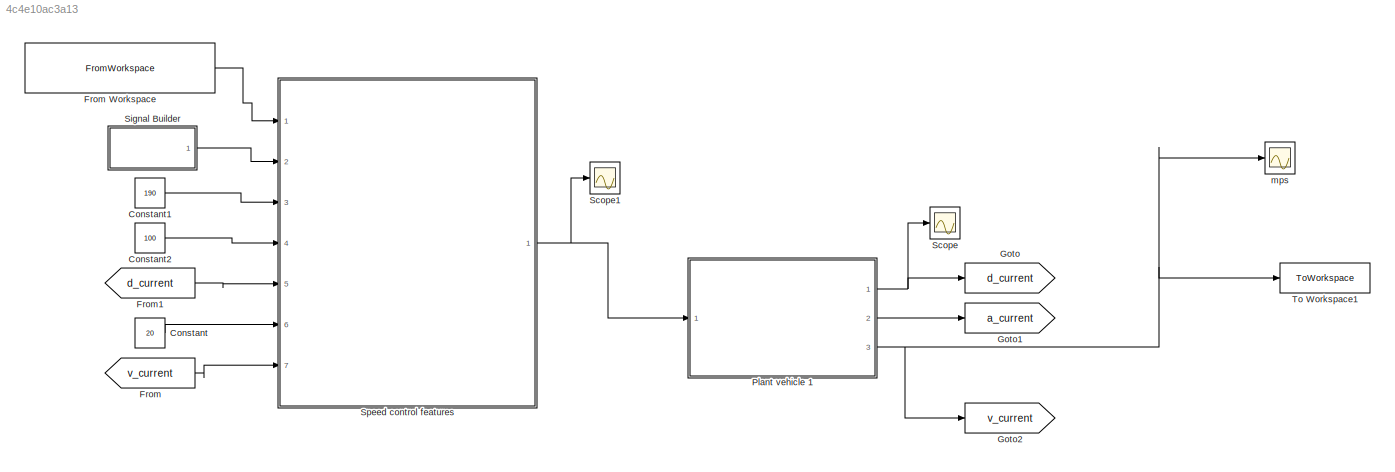
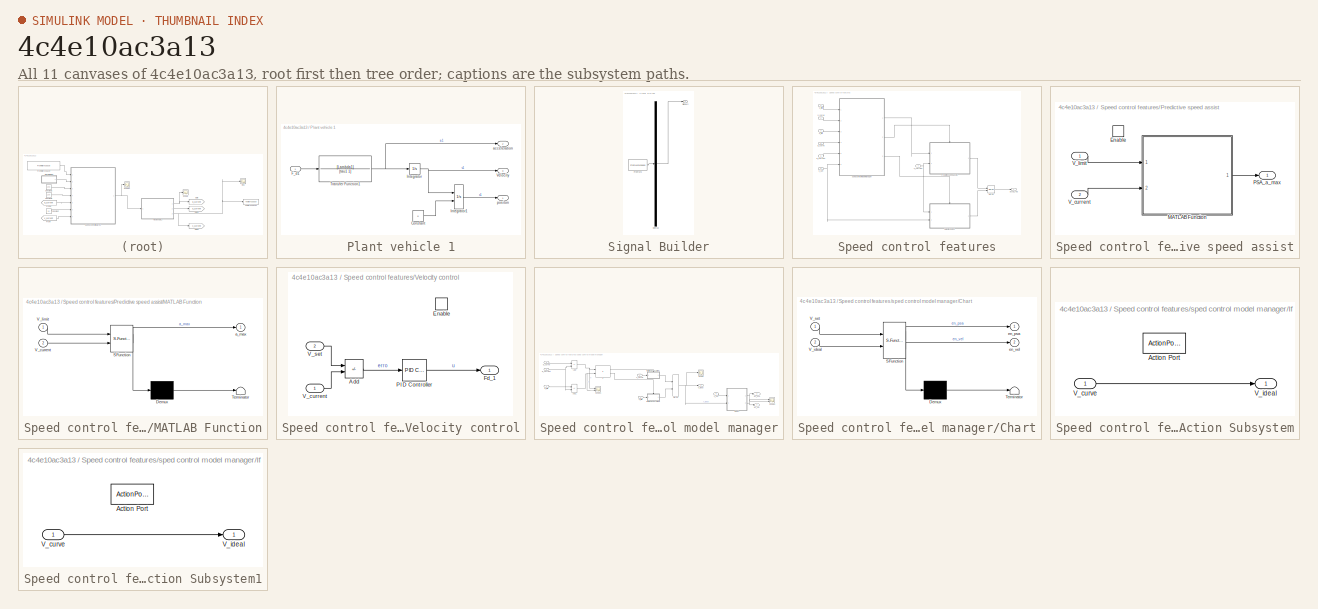
[diagram: thumbnail index - all 11 canvases of the model, root first then tree order]
MODEL slx_4c4e10ac3a13
KIND model
CONFIG AbsTol = auto
CONFIG EnableMultiTasking = off
CONFIG FixedStep = auto
CONFIG MaxStep = auto
CONFIG MinStep = auto
CONFIG RelTol = 1e-3
CONFIG SampleTimeConstraint = Unconstrained
CONFIG SolverName = VariableStepAuto
CONFIG StartTime = 0.0
CONFIG StopTime = 40
BLOCK [Constant] Constant
  Value = 20
BLOCK [Constant] Constant1
  Value = 190
BLOCK [Constant] Constant2
  Value = 100
BLOCK [From] From
  GotoTag = v_current
BLOCK [FromWorkspace] From Workspace
  SampleTime = 0.1
  VariableName = [tRef,V_curve]
BLOCK [From] From1
  GotoTag = d_current
BLOCK [Goto] Goto
  GotoTag = d_current
BLOCK [Goto] Goto1
  GotoTag = a_current
BLOCK [Goto] Goto2
  GotoTag = v_current
BLOCK [SubSystem] Plant vehicle 1
  Ports = [1, 3]
  RequestExecContextInheritance = off
BLOCK [Constant] Plant vehicle 1/Constant
  Value = 0
BLOCK [Inport] Plant vehicle 1/F_d1
BLOCK [Integrator] Plant vehicle 1/Integrator
  InitialCondition = 3
  Ports = [1, 1]
BLOCK [Integrator] Plant vehicle 1/Integrator1
  InitialCondition = x0
  InitialConditionSource = external
  Ports = [2, 1]
BLOCK [TransferFcn] Plant vehicle 1/Transfer Function1
  Denominator = [tau1 1]
  Numerator = [Lambda1]
BLOCK [Outport] Plant vehicle 1/Velocity
  Port = 3
BLOCK [Outport] Plant vehicle 1/acceleration
  Port = 2
BLOCK [Outport] Plant vehicle 1/positon
BLOCK [Scope] Scope
  Floating = off
  NumInputPorts = 1
  Ports = [1]
  ScopeSpecificationString = Simulink.scopes.TimeScopeBlockCfg('CurrentConfiguration', extmgr.ConfigurationSet(extmgr.Configuration('Core','General UI',true),extmgr.Configuration('Core','Source UI',true),extmgr.Configuration('Sources','WiredSimulink',true,'DataLoggingVariableName','ScopeData4'),extmgr.Configuration('Visuals','Time Domain',true,'SerializedDisplays',{struct('MinYLimReal','-92.22336','MaxYLimReal','830.01025','Y...<+1387ch>
BLOCK [Scope] Scope1
  Floating = off
  NumInputPorts = 1
  Ports = [1]
  ScopeSpecificationString = Simulink.scopes.TimeScopeBlockCfg('CurrentConfiguration', extmgr.ConfigurationSet(extmgr.Configuration('Core','General UI',true),extmgr.Configuration('Core','Source UI',true),extmgr.Configuration('Sources','WiredSimulink',true,'DataLoggingVariableName','ScopeData5'),extmgr.Configuration('Visuals','Time Domain',true,'SerializedDisplays',{struct('MinYLimReal','-190.05692','MaxYLimReal','2281.70915',...<+1418ch>
BLOCK [SubSystem] Signal Builder
  ClipboardFcn = sigbuilder_block('clipboard');
  CloseFcn = sigbuilder_block('close');
  ContinueFcn = sigbuilder_block('continue');
  CopyFcn = sigbuilder_block('copy');
  DeleteFcn = sigbuilder_block('delete');
  LoadFcn = sigbuilder_block('load');
  MaskHideContents = on
  ModelCloseFcn = sigbuilder_block('modelClose');
  NameChangeFcn = sigbuilder_block('namechange');
  OpenFcn = sigbuilder_block('open',[235.2 67.2 550.8 400.2 ]);
  PauseFcn = sigbuilder_block('pause');
  Ports = [0, 1]
  PreSaveFcn = sigbuilder_block('preSave');
  RequestExecContextInheritance = off
  StartFcn = sigbuilder_block('start');
  StopFcn = sigbuilder_block('stop');
  Tag = STV Subsys
BLOCK [Demux] Signal Builder/Demux
  DisplayOption = none
  Outputs = 1
  Ports = [1, 1]
  Tag = STV Demux
BLOCK [FromWorkspace] Signal Builder/FromWs
  Tag = STV FromWs
  VariableName = tuvar
BLOCK [Outport] Signal Builder/Signal 2
  Tag = STV Outport
BLOCK [SubSystem] Speed control features
  Ports = [7, 1]
  RequestExecContextInheritance = off
BLOCK [Merge] Speed control features/Merge
  Ports = [2, 1]
BLOCK [SubSystem] Speed control features/Predictive speed assist
  Ports = [2, 1, 1]
  RequestExecContextInheritance = off
BLOCK [EnablePort] Speed control features/Predictive speed assist/Enable
  Ports = []
BLOCK [SubSystem] Speed control features/Predictive speed assist/MATLAB Function
  ErrorFcn = Stateflow.Translate.translate
  PermitHierarchicalResolution = ExplicitOnly
  Ports = [2, 1]
  RequestExecContextInheritance = off
  SFBlockType = MATLAB Function
  TreatAsAtomicUnit = on
BLOCK [Demux] Speed control features/Predictive speed assist/MATLAB Function/ Demux 
  Outputs = 1
  Ports = [1, 1]
BLOCK [S-Function] Speed control features/Predictive speed assist/MATLAB Function/ SFunction 
  EnableBusSupport = on
  FunctionName = sf_sfun
  PortCounts = [2 2]
  Ports = [2, 2]
  SFcnIsStateOwnerBlock = off
  SFunctionDeploymentMode = off
  Tag = Stateflow S-Function 1
BLOCK [Terminator] Speed control features/Predictive speed assist/MATLAB Function/ Terminator 
BLOCK [Inport] Speed control features/Predictive speed assist/MATLAB Function/V_current
  Port = 2
BLOCK [Inport] Speed control features/Predictive speed assist/MATLAB Function/V_limit
BLOCK [Outport] Speed control features/Predictive speed assist/MATLAB Function/a_max
BLOCK [Outport] Speed control features/Predictive speed assist/PSA_a_max
BLOCK [Inport] Speed control features/Predictive speed assist/V_current
  Port = 2
BLOCK [Inport] Speed control features/Predictive speed assist/V_limit
BLOCK [Inport] Speed control features/V_current
  Port = 7
BLOCK [Inport] Speed control features/V_curve
BLOCK [Inport] Speed control features/V_limit
  Port = 2
BLOCK [Inport] Speed control features/V_set
  Port = 6
BLOCK [SubSystem] Speed control features/Velocity control
  Ports = [2, 1, 1]
  RequestExecContextInheritance = off
BLOCK [Sum] Speed control features/Velocity control/Add
  IconShape = rectangular
  Inputs = +-
  Ports = [2, 1]
BLOCK [EnablePort] Speed control features/Velocity control/Enable
  Ports = []
BLOCK [Outport] Speed control features/Velocity control/Fd_1
BLOCK [Reference] Speed control features/Velocity control/PID Controller  REF=pid_lib/PID Controller
  Ports = [1, 1]
  SourceBlock = pid_lib/PID Controller
  SourceProductBaseCode = SL
  SourceType = PID 1dof
BLOCK [Inport] Speed control features/Velocity control/V_current
BLOCK [Inport] Speed control features/Velocity control/V_set
  Port = 2
BLOCK [Outport] Speed control features/accel_req
BLOCK [Inport] Speed control features/d_current
  Port = 5
BLOCK [Inport] Speed control features/d_curve
  Port = 4
BLOCK [Inport] Speed control features/d_limit 
  Port = 3
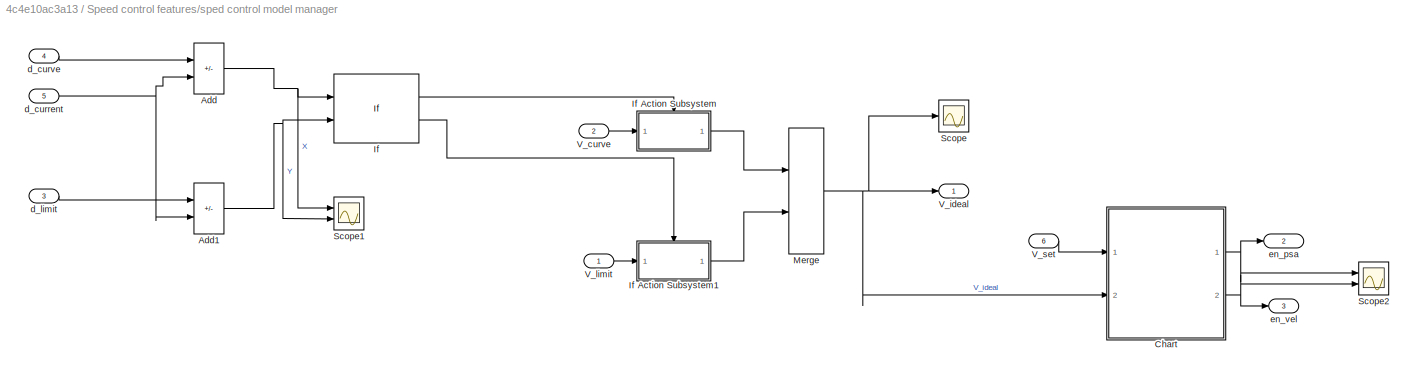
BLOCK [SubSystem] Speed control features/sped control model manager
  Ports = [6, 3]
  RequestExecContextInheritance = off
BLOCK [Sum] Speed control features/sped control model manager/Add
  IconShape = rectangular
  Inputs = +-
  Ports = [2, 1]
BLOCK [Sum] Speed control features/sped control model manager/Add1
  IconShape = rectangular
  Inputs = +-
  Ports = [2, 1]
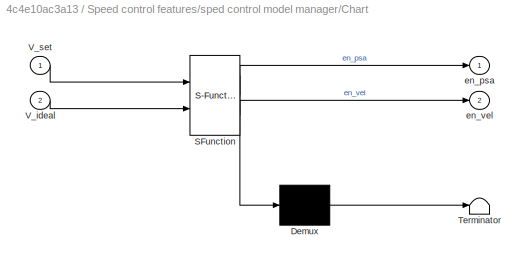
BLOCK [SubSystem] Speed control features/sped control model manager/Chart
  ErrorFcn = Stateflow.Translate.translate
  PermitHierarchicalResolution = ExplicitOnly
  Ports = [2, 2]
  RequestExecContextInheritance = off
  SFBlockType = Chart
  TreatAsAtomicUnit = on
BLOCK [Demux] Speed control features/sped control model manager/Chart/ Demux 
  Outputs = 1
  Ports = [1, 1]
BLOCK [S-Function] Speed control features/sped control model manager/Chart/ SFunction 
  EnableBusSupport = on
  FunctionName = sf_sfun
  PortCounts = [2 3]
  Ports = [2, 3]
  SFcnIsStateOwnerBlock = off
  SFunctionDeploymentMode = off
  Tag = Stateflow S-Function 3
BLOCK [Terminator] Speed control features/sped control model manager/Chart/ Terminator 
BLOCK [Inport] Speed control features/sped control model manager/Chart/V_ideal
  Port = 2
BLOCK [Inport] Speed control features/sped control model manager/Chart/V_set
BLOCK [Outport] Speed control features/sped control model manager/Chart/en_psa
BLOCK [Outport] Speed control features/sped control model manager/Chart/en_vel
  Port = 2
BLOCK [If] Speed control features/sped control model manager/If
  IfExpression = u1<u2
  NumInputs = 2
  Ports = [2, 2]
BLOCK [SubSystem] Speed control features/sped control model manager/If Action Subsystem
  Ports = [1, 1, 0, 0, 0, 0, 0, 1]
  RequestExecContextInheritance = off
  TreatAsAtomicUnit = on
BLOCK [ActionPort] Speed control features/sped control model manager/If Action Subsystem/Action Port
  ActionPortLabel = if(u1<u2)
BLOCK [Inport] Speed control features/sped control model manager/If Action Subsystem/V_curve
BLOCK [Outport] Speed control features/sped control model manager/If Action Subsystem/V_ideal
BLOCK [SubSystem] Speed control features/sped control model manager/If Action Subsystem1
  Ports = [1, 1, 0, 0, 0, 0, 0, 1]
  RequestExecContextInheritance = off
  TreatAsAtomicUnit = on
BLOCK [ActionPort] Speed control features/sped control model manager/If Action Subsystem1/Action Port
  ActionPortLabel = else
BLOCK [Inport] Speed control features/sped control model manager/If Action Subsystem1/V_curve
BLOCK [Outport] Speed control features/sped control model manager/If Action Subsystem1/V_ideal
BLOCK [Merge] Speed control features/sped control model manager/Merge
  Ports = [2, 1]
BLOCK [Scope] Speed control features/sped control model manager/Scope
  Floating = off
  NumInputPorts = 1
  Ports = [1]
  ScopeSpecificationString = Simulink.scopes.TimeScopeBlockCfg('CurrentConfiguration', extmgr.ConfigurationSet(extmgr.Configuration('Core','General UI',true),extmgr.Configuration('Core','Source UI',true),extmgr.Configuration('Sources','WiredSimulink',true,'DataLoggingVariableName','ScopeData2'),extmgr.Configuration('Visuals','Time Domain',true,'SerializedDisplays',{struct('MinYLimReal','-186986.05814','MaxYLimReal','118182.52...<+1481ch>
BLOCK [Scope] Speed control features/sped control model manager/Scope1
  Floating = off
  NumInputPorts = 2
  Ports = [2]
  ScopeSpecificationString = Simulink.scopes.TimeScopeBlockCfg('CurrentConfiguration', extmgr.ConfigurationSet(extmgr.Configuration('Core','General UI',true),extmgr.Configuration('Core','Source UI',true),extmgr.Configuration('Sources','WiredSimulink',true,'DataLoggingVariableName','ScopeData3'),extmgr.Configuration('Visuals','Time Domain',true,'SerializedDisplays',{struct('MinYLimReal','-740.64769','MaxYLimReal','293.4053','Y...<+1431ch>
BLOCK [Scope] Speed control features/sped control model manager/Scope2
  Floating = off
  NumInputPorts = 2
  Ports = [2]
  ScopeSpecificationString = Simulink.scopes.TimeScopeBlockCfg('CurrentConfiguration', extmgr.ConfigurationSet(extmgr.Configuration('Core','General UI',true),extmgr.Configuration('Core','Source UI',true),extmgr.Configuration('Sources','WiredSimulink',true,'DataLoggingVariableName','ScopeData1'),extmgr.Configuration('Visuals','Time Domain',true,'SerializedDisplays',{struct('MinYLimReal','-0.125','MaxYLimReal','1.125','YLabelRe...<+2050ch>
BLOCK [Inport] Speed control features/sped control model manager/V_curve
  Port = 2
BLOCK [Outport] Speed control features/sped control model manager/V_ideal
BLOCK [Inport] Speed control features/sped control model manager/V_limit
BLOCK [Inport] Speed control features/sped control model manager/V_set
  Port = 6
BLOCK [Inport] Speed control features/sped control model manager/d_current
  Port = 5
BLOCK [Inport] Speed control features/sped control model manager/d_curve
  Port = 4
BLOCK [Inport] Speed control features/sped control model manager/d_limit 
  Port = 3
BLOCK [Outport] Speed control features/sped control model manager/en_psa
  Port = 2
BLOCK [Outport] Speed control features/sped control model manager/en_vel
  Port = 3
BLOCK [ToWorkspace] To Workspace1
  FixptAsFi = on
  MaxDataPoints = inf
  Ports = [1]
  SampleTime = -1
  SaveFormat = Timeseries
  VariableName = output_v
BLOCK [Scope] mps
  Floating = off
  NumInputPorts = 1
  Ports = [1]
  ScopeSpecificationString = Simulink.scopes.TimeScopeBlockCfg('CurrentConfiguration', extmgr.ConfigurationSet(extmgr.Configuration('Core','General UI',true),extmgr.Configuration('Core','Source UI',true),extmgr.Configuration('Sources','WiredSimulink',true),extmgr.Configuration('Visuals','Time Domain',true,'SerializedDisplays',{struct('MinYLimReal','0.8751','MaxYLimReal','22.12408','YLabelReal','','MinYLimMag','0.8751','MaxYLi...<+1370ch>
LINE Constant1:1 -> Speed control features:3
LINE Constant2:1 -> Speed control features:4
LINE Constant:1 -> Speed control features:6
LINE From Workspace:1 -> Speed control features:1
LINE From1:1 -> Speed control features:5
LINE From:1 -> Speed control features:7
LINE Plant vehicle 1/Constant:1 -> Plant vehicle 1/Integrator1:2
LINE Plant vehicle 1/F_d1:1 -> Plant vehicle 1/Transfer Function1:1
LINE Plant vehicle 1/Integrator1:1 -> Plant vehicle 1/positon:1
NET Plant vehicle 1/Integrator:1 -> Plant vehicle 1/Integrator1:1, Plant vehicle 1/Velocity:1
NET Plant vehicle 1/Transfer Function1:1 -> Plant vehicle 1/Integrator:1, Plant vehicle 1/acceleration:1
NET Plant vehicle 1:1 -> Goto:1, Scope:1
LINE Plant vehicle 1:2 -> Goto1:1
NET Plant vehicle 1:3 -> Goto2:1, To Workspace1:1, mps:1
LINE Signal Builder:1 -> Speed control features:2
LINE Speed control features/Merge:1 -> Speed control features/accel_req:1
LINE Speed control features/Predictive speed assist/MATLAB Function:1 -> Speed control features/Predictive speed assist/PSA_a_max:1
LINE Speed control features/Predictive speed assist/V_current:1 -> Speed control features/Predictive speed assist/MATLAB Function:2
LINE Speed control features/Predictive speed assist/V_limit:1 -> Speed control features/Predictive speed assist/MATLAB Function:1
LINE Speed control features/Predictive speed assist:1 -> Speed control features/Merge:1
NET Speed control features/V_current:1 -> Speed control features/Predictive speed assist:2, Speed control features/Velocity control:1
LINE Speed control features/V_curve:1 -> Speed control features/sped control model manager:2
LINE Speed control features/V_limit:1 -> Speed control features/sped control model manager:1
NET Speed control features/V_set:1 -> Speed control features/Velocity control:2, Speed control features/sped control model manager:6
LINE Speed control features/Velocity control/Add:1 -> Speed control features/Velocity control/PID Controller:1
LINE Speed control features/Velocity control/PID Controller:1 -> Speed control features/Velocity control/Fd_1:1
LINE Speed control features/Velocity control/V_current:1 -> Speed control features/Velocity control/Add:2
LINE Speed control features/Velocity control/V_set:1 -> Speed control features/Velocity control/Add:1
LINE Speed control features/Velocity control:1 -> Speed control features/Merge:2
LINE Speed control features/d_current:1 -> Speed control features/sped control model manager:5
LINE Speed control features/d_curve:1 -> Speed control features/sped control model manager:4
LINE Speed control features/d_limit :1 -> Speed control features/sped control model manager:3
NET Speed control features/sped control model manager/Add1:1 -> Speed control features/sped control model manager/If:2, Speed control features/sped control model manager/Scope1:2
NET Speed control features/sped control model manager/Add:1 -> Speed control features/sped control model manager/If:1, Speed control features/sped control model manager/Scope1:1
NET Speed control features/sped control model manager/Chart:1 -> Speed control features/sped control model manager/Scope2:1, Speed control features/sped control model manager/en_psa:1
NET Speed control features/sped control model manager/Chart:2 -> Speed control features/sped control model manager/Scope2:2, Speed control features/sped control model manager/en_vel:1
LINE Speed control features/sped control model manager/If Action Subsystem/V_curve:1 -> Speed control features/sped control model manager/If Action Subsystem/V_ideal:1
LINE Speed control features/sped control model manager/If Action Subsystem1/V_curve:1 -> Speed control features/sped control model manager/If Action Subsystem1/V_ideal:1
LINE Speed control features/sped control model manager/If Action Subsystem1:1 -> Speed control features/sped control model manager/Merge:2
LINE Speed control features/sped control model manager/If Action Subsystem:1 -> Speed control features/sped control model manager/Merge:1
LINE Speed control features/sped control model manager/If:1 -> Speed control features/sped control model manager/If Action Subsystem:ifaction
LINE Speed control features/sped control model manager/If:2 -> Speed control features/sped control model manager/If Action Subsystem1:ifaction
NET Speed control features/sped control model manager/Merge:1 -> Speed control features/sped control model manager/Chart:2, Speed control features/sped control model manager/Scope:1, Speed control features/sped control model manager/V_ideal:1
LINE Speed control features/sped control model manager/V_curve:1 -> Speed control features/sped control model manager/If Action Subsystem:1
LINE Speed control features/sped control model manager/V_limit:1 -> Speed control features/sped control model manager/If Action Subsystem1:1
LINE Speed control features/sped control model manager/V_set:1 -> Speed control features/sped control model manager/Chart:1
NET Speed control features/sped control model manager/d_current:1 -> Speed control features/sped control model manager/Add1:2, Speed control features/sped control model manager/Add:2
LINE Speed control features/sped control model manager/d_curve:1 -> Speed control features/sped control model manager/Add:1
LINE Speed control features/sped control model manager/d_limit :1 -> Speed control features/sped control model manager/Add1:1
LINE Speed control features/sped control model manager:1 -> Speed control features/Predictive speed assist:1
LINE Speed control features/sped control model manager:2 -> Speed control features/Predictive speed assist:enable
LINE Speed control features/sped control model manager:3 -> Speed control features/Velocity control:enable
NET Speed control features:1 -> Plant vehicle 1:1, Scope1:1
note: NET lines group one-source signal fan-out (src -> all destinations, sorted); 1:1 wires keep LINE
CHART Speed control features/Predictive speed assist/MATLAB Function states=1 transitions=1
  STATE_LABEL 'eML_blk_kernel()'
  STATE_LABEL 'SCRIPT:\nfunction a_max = PSA(V_limit,V_current)\nif V_current < V_limit+0.2\n    a_max = 2; % mpss\n    \nelseif V_current > V_limit+0.2\n    a_max = -2; % mpss\nelse \n    a_max = 0;\n\nend'
CHART Speed control features/sped control model manager/Chart states=2 transitions=3
  STATE_LABEL 'Velocity_control\nen:\nen_vel = true;\nen_psa = false;'
  STATE_LABEL 'PSA\nen:\nen_psa = true;\nen_vel = false;'
CHART  states=0 transitions=0
CHART  states=0 transitions=0
